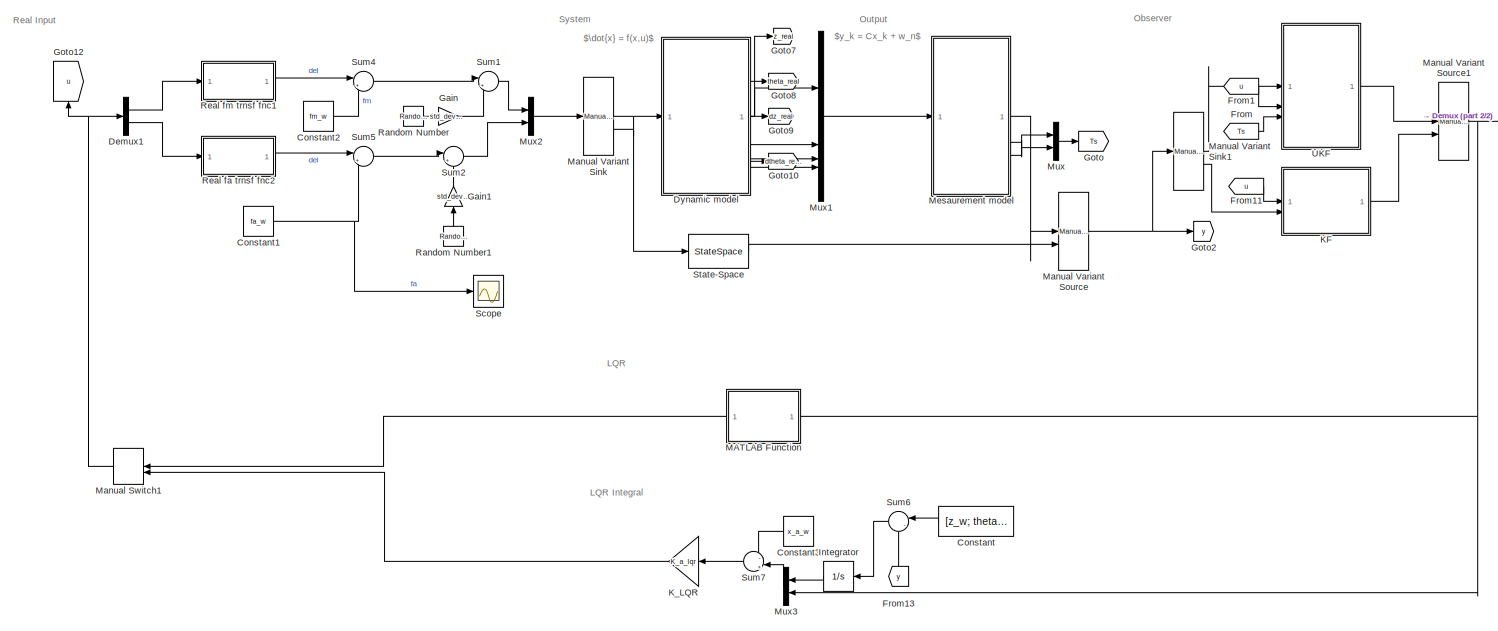
[diagram: root canvas - part 1/2, most of the canvas]
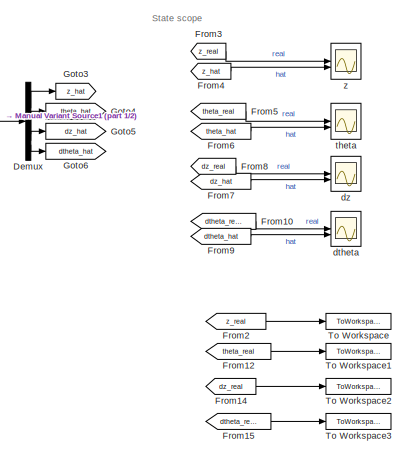
[diagram: root canvas - part 2/2, middle right region]
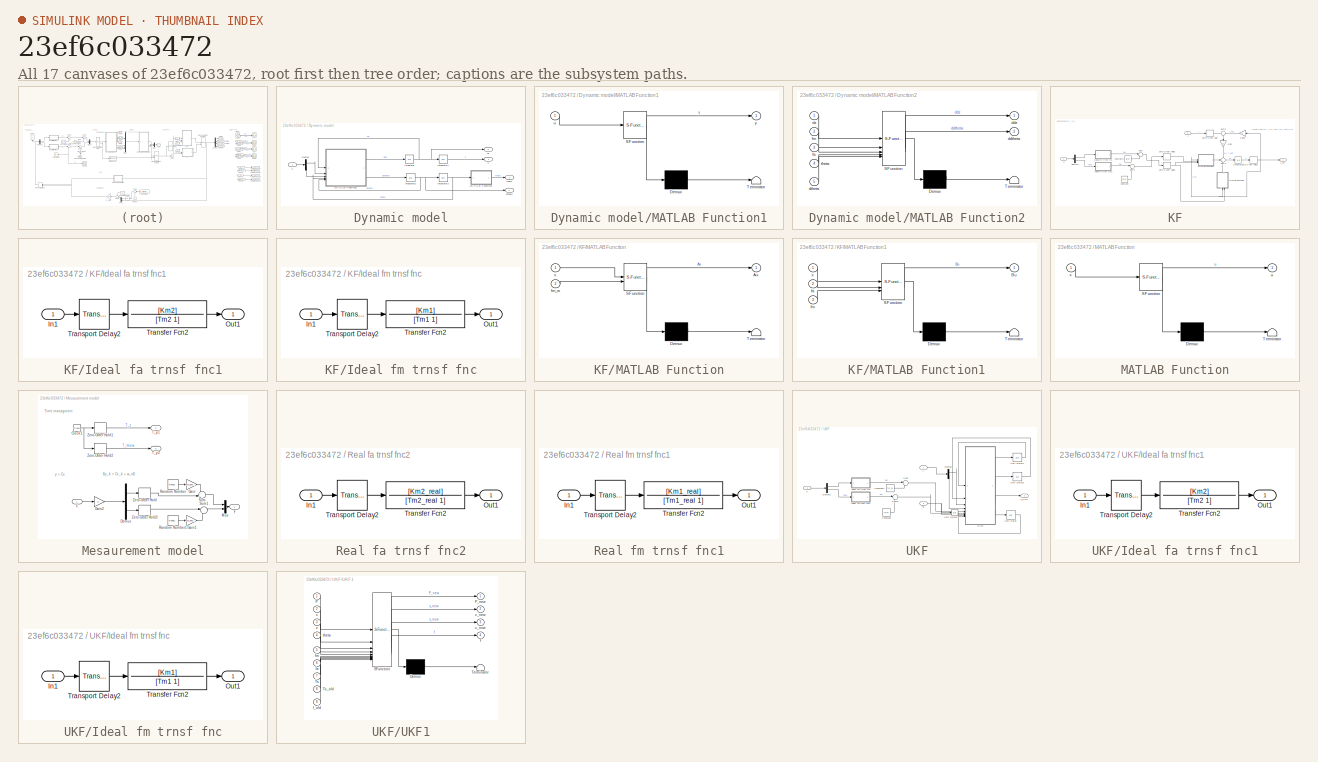
[diagram: thumbnail index - all 17 canvases of the model, root first then tree order]
MODEL slx_23ef6c033472
KIND model
CONFIG AbsTol = auto
CONFIG EnableMultiTasking = off
CONFIG FixedStep = out_rate
CONFIG InitFcn = LQR_init
CONFIG MaxStep = auto
CONFIG MinStep = auto
CONFIG RelTol = 1e-3
CONFIG SampleTimeConstraint = Unconstrained
CONFIG SolverName = FixedStepAuto
CONFIG StartTime = 0.0
CONFIG StopTime = 100
BLOCK [Constant] Constant
  NameLocation = top
  Value = [z_w; theta_w]
BLOCK [Constant] Constant1
  Value = fa_w
BLOCK [Constant] Constant2
  Value = fm_w
BLOCK [Constant] Constant3
  NameLocation = top
  Value = x_a_w
BLOCK [Demux] Demux
BLOCK [Demux] Demux1
  Outputs = 2
BLOCK [SubSystem] Dynamic model
BLOCK [Demux] Dynamic model/Demux
  Outputs = 2
BLOCK [Integrator] Dynamic model/Integrator
  InitialCondition = dz_0_real
BLOCK [Integrator] Dynamic model/Integrator1
  InitialCondition = z_0_real
BLOCK [Integrator] Dynamic model/Integrator2
  InitialCondition = dtheta_0_real
BLOCK [Integrator] Dynamic model/Integrator3
  InitialCondition = theta_0_real
BLOCK [SubSystem] Dynamic model/MATLAB Function1
  ErrorFcn = Stateflow.Translate.translate
  PermitHierarchicalResolution = ExplicitOnly
  SFBlockType = MATLAB Function
  TreatAsAtomicUnit = on
BLOCK [Demux] Dynamic model/MATLAB Function1/ Demux 
  Outputs = 1
BLOCK [S-Function] Dynamic model/MATLAB Function1/ SFunction 
  EnableBusSupport = on
  FunctionName = sf_sfun
  PortCounts = [1 2]
  SFcnIsStateOwnerBlock = off
  SFunctionDeploymentMode = off
  Tag = Stateflow S-Function 7
BLOCK [Terminator] Dynamic model/MATLAB Function1/ Terminator 
BLOCK [Inport] Dynamic model/MATLAB Function1/u
BLOCK [Outport] Dynamic model/MATLAB Function1/y
BLOCK [SubSystem] Dynamic model/MATLAB Function2
  ErrorFcn = Stateflow.Translate.translate
  PermitHierarchicalResolution = ExplicitOnly
  SFBlockType = MATLAB Function
  TreatAsAtomicUnit = on
BLOCK [Demux] Dynamic model/MATLAB Function2/ Demux 
  Outputs = 1
BLOCK [S-Function] Dynamic model/MATLAB Function2/ SFunction 
  EnableBusSupport = on
  FunctionName = sf_sfun
  Parameters = s_param
  PortCounts = [5 3]
  SFcnIsStateOwnerBlock = off
  SFunctionDeploymentMode = off
  Tag = Stateflow S-Function 2
BLOCK [Terminator] Dynamic model/MATLAB Function2/ Terminator 
BLOCK [Outport] Dynamic model/MATLAB Function2/ddtheta
  Port = 2
BLOCK [Outport] Dynamic model/MATLAB Function2/ddz
BLOCK [Inport] Dynamic model/MATLAB Function2/dtheta
  Port = 5
BLOCK [Inport] Dynamic model/MATLAB Function2/dz
BLOCK [Inport] Dynamic model/MATLAB Function2/fa
  Port = 3
BLOCK [Inport] Dynamic model/MATLAB Function2/fm
  Port = 2
BLOCK [Inport] Dynamic model/MATLAB Function2/theta
  Port = 4
BLOCK [Outport] Dynamic model/dtheta
  Port = 4
BLOCK [Outport] Dynamic model/dz
  Port = 3
BLOCK [Outport] Dynamic model/theta
  Port = 2
BLOCK [Inport] Dynamic model/u
BLOCK [Outport] Dynamic model/z
BLOCK [From] From
  GotoTag = Ts
BLOCK [From] From1
  GotoTag = u
BLOCK [From] From10
  GotoTag = dtheta_real
BLOCK [From] From11
  GotoTag = u
BLOCK [From] From12
  GotoTag = theta_real
BLOCK [From] From13
  GotoTag = y
  NameLocation = right
BLOCK [From] From14
  GotoTag = dz_real
BLOCK [From] From15
  GotoTag = dtheta_real
BLOCK [From] From2
  GotoTag = z_real
BLOCK [From] From3
  GotoTag = z_real
BLOCK [From] From4
  GotoTag = z_hat
BLOCK [From] From5
  GotoTag = theta_real
BLOCK [From] From6
  GotoTag = theta_hat
BLOCK [From] From7
  GotoTag = dz_hat
BLOCK [From] From8
  GotoTag = dz_real
BLOCK [From] From9
  GotoTag = dtheta_hat
BLOCK [Gain] Gain
  Gain = std_dev.fm
BLOCK [Gain] Gain1
  Gain = std_dev.fa
  NameLocation = right
BLOCK [Goto] Goto
  GotoTag = Ts
BLOCK [Goto] Goto10
  GotoTag = dtheta_real
BLOCK [Goto] Goto12
  GotoTag = u
  NameLocation = right
BLOCK [Goto] Goto2
  GotoTag = y
BLOCK [Goto] Goto3
  GotoTag = z_hat
BLOCK [Goto] Goto4
  GotoTag = theta_hat
BLOCK [Goto] Goto5
  GotoTag = dz_hat
BLOCK [Goto] Goto6
  GotoTag = dtheta_hat
BLOCK [Goto] Goto7
  GotoTag = z_real
BLOCK [Goto] Goto8
  GotoTag = theta_real
BLOCK [Goto] Goto9
  GotoTag = dz_real
BLOCK [Integrator] Integrator
  NameLocation = top
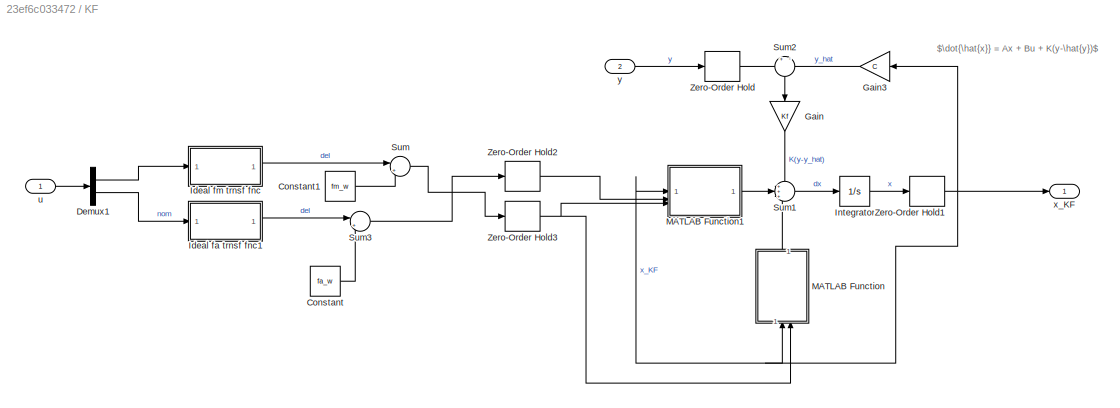
BLOCK [SubSystem] KF
BLOCK [Constant] KF/Constant
  Value = fa_w
BLOCK [Constant] KF/Constant1
  Value = fm_w
BLOCK [Demux] KF/Demux1
  Outputs = 2
BLOCK [Gain] KF/Gain
  Gain = Kf
  Multiplication = Matrix(K*u)
  NameLocation = left
BLOCK [Gain] KF/Gain3
  Gain = C
  Multiplication = Matrix(K*u)
  NameLocation = top
BLOCK [SubSystem] KF/Ideal fa trnsf fnc1
BLOCK [Inport] KF/Ideal fa trnsf fnc1/In1
BLOCK [Outport] KF/Ideal fa trnsf fnc1/Out1
BLOCK [TransferFcn] KF/Ideal fa trnsf fnc1/Transfer Fcn2
  Denominator = [Tm2 1]
  Numerator = [Km2]
BLOCK [TransportDelay] KF/Ideal fa trnsf fnc1/Transport Delay2
  DelayTime = T2
BLOCK [SubSystem] KF/Ideal fm trnsf fnc
BLOCK [Inport] KF/Ideal fm trnsf fnc/In1
BLOCK [Outport] KF/Ideal fm trnsf fnc/Out1
BLOCK [TransferFcn] KF/Ideal fm trnsf fnc/Transfer Fcn2
  Denominator = [Tm1 1]
  Numerator = [Km1]
BLOCK [TransportDelay] KF/Ideal fm trnsf fnc/Transport Delay2
  DelayTime = T1
BLOCK [Integrator] KF/Integrator
  InitialCondition = x_0
BLOCK [SubSystem] KF/MATLAB Function
  ErrorFcn = Stateflow.Translate.translate
  LibrarySourceBlock = simulink/User-Defined\nFunctions/MATLAB Function
  NameLocation = right
  PermitHierarchicalResolution = ExplicitOnly
  SFBlockType = MATLAB Function
  TreatAsAtomicUnit = on
BLOCK [Demux] KF/MATLAB Function/ Demux 
  Outputs = 1
BLOCK [S-Function] KF/MATLAB Function/ SFunction 
  EnableBusSupport = on
  FunctionName = sf_sfun
  Parameters = s_param
  PortCounts = [2 2]
  SFcnIsStateOwnerBlock = off
  SFunctionDeploymentMode = off
  Tag = Stateflow S-Function 1
BLOCK [Terminator] KF/MATLAB Function/ Terminator 
BLOCK [Outport] KF/MATLAB Function/Ax
BLOCK [Inport] KF/MATLAB Function/fm_w
  Port = 2
BLOCK [Inport] KF/MATLAB Function/x
BLOCK [SubSystem] KF/MATLAB Function1
  ErrorFcn = Stateflow.Translate.translate
  LibrarySourceBlock = simulink/User-Defined\nFunctions/MATLAB Function
  PermitHierarchicalResolution = ExplicitOnly
  SFBlockType = MATLAB Function
  TreatAsAtomicUnit = on
BLOCK [Demux] KF/MATLAB Function1/ Demux 
  Outputs = 1
BLOCK [S-Function] KF/MATLAB Function1/ SFunction 
  EnableBusSupport = on
  FunctionName = sf_sfun
  Parameters = s_param
  PortCounts = [3 2]
  SFcnIsStateOwnerBlock = off
  SFunctionDeploymentMode = off
  Tag = Stateflow S-Function 4
BLOCK [Terminator] KF/MATLAB Function1/ Terminator 
BLOCK [Outport] KF/MATLAB Function1/Bu
BLOCK [Inport] KF/MATLAB Function1/fa
  Port = 2
BLOCK [Inport] KF/MATLAB Function1/fm
  Port = 3
BLOCK [Inport] KF/MATLAB Function1/x
BLOCK [Sum] KF/Sum
  Inputs = |++
BLOCK [Sum] KF/Sum1
  Inputs = +++
BLOCK [Sum] KF/Sum2
  Inputs = +|-
  NameLocation = left
BLOCK [Sum] KF/Sum3
  Inputs = |++
BLOCK [ZeroOrderHold] KF/Zero-Order Hold
  SampleTime = dt
BLOCK [ZeroOrderHold] KF/Zero-Order Hold1
  SampleTime = dt
BLOCK [ZeroOrderHold] KF/Zero-Order Hold2
  SampleTime = dt
BLOCK [ZeroOrderHold] KF/Zero-Order Hold3
  SampleTime = dt
BLOCK [Inport] KF/u
BLOCK [Outport] KF/x_KF
BLOCK [Inport] KF/y
  Port = 2
BLOCK [Gain] K_LQR
  Gain = K_a_lqr
  Multiplication = Matrix(K*u)
  NameLocation = top
BLOCK [SubSystem] MATLAB Function
  ErrorFcn = Stateflow.Translate.translate
  NameLocation = top
  PermitHierarchicalResolution = ExplicitOnly
  SFBlockType = MATLAB Function
  TreatAsAtomicUnit = on
BLOCK [Demux] MATLAB Function/ Demux 
  Outputs = 1
BLOCK [S-Function] MATLAB Function/ SFunction 
  EnableBusSupport = on
  FunctionName = sf_sfun
  Parameters = K_lqr,x_w
  PortCounts = [1 2]
  SFcnIsStateOwnerBlock = off
  SFunctionDeploymentMode = off
  Tag = Stateflow S-Function 3
BLOCK [Terminator] MATLAB Function/ Terminator 
BLOCK [Outport] MATLAB Function/u
BLOCK [Inport] MATLAB Function/x
BLOCK [ManualSwitch] Manual Switch1
  NameLocation = top
BLOCK [Reference] Manual Variant Sink  REF=simulink/Signal
Routing/Manual
Variant Sink
  SourceBlock = simulink/Signal\nRouting/Manual\nVariant Sink
  SourceType = ManualVariantSink
BLOCK [Reference] Manual Variant Sink1  REF=simulink/Signal
Routing/Manual
Variant Sink
  SourceBlock = simulink/Signal\nRouting/Manual\nVariant Sink
  SourceType = ManualVariantSink
BLOCK [Reference] Manual Variant Source  REF=simulink/Signal
Routing/Manual
Variant Source
  SourceBlock = simulink/Signal\nRouting/Manual\nVariant Source
  SourceType = ManualVariantSource
BLOCK [Reference] Manual Variant Source1  REF=simulink/Signal
Routing/Manual
Variant Source
  SourceBlock = simulink/Signal\nRouting/Manual\nVariant Source
  SourceType = ManualVariantSource
BLOCK [SubSystem] Mesaurement model
BLOCK [Clock] Mesaurement model/Clock1
BLOCK [Demux] Mesaurement model/Demux
  Outputs = 2
BLOCK [Gain] Mesaurement model/Gain
  Gain = std_dev.y1
BLOCK [Gain] Mesaurement model/Gain1
  Gain = std_dev.y2
BLOCK [Gain] Mesaurement model/Gain2
  Gain = C
  Multiplication = Matrix(K*u)
BLOCK [Mux] Mesaurement model/Mux
  DisplayOption = bar
  Inputs = 2
BLOCK [RandomNumber] Mesaurement model/Random Number
  SampleTime = Ts.y1
BLOCK [RandomNumber] Mesaurement model/Random Number1
  SampleTime = Ts.y2
BLOCK [Sum] Mesaurement model/Sum
  Inputs = ++|
BLOCK [Sum] Mesaurement model/Sum1
  Inputs = |++
BLOCK [Outport] Mesaurement model/T_y1
  Port = 2
BLOCK [Outport] Mesaurement model/T_y2
  Port = 3
BLOCK [ZeroOrderHold] Mesaurement model/Zero-Order Hold
  SampleTime = Ts.y1
BLOCK [ZeroOrderHold] Mesaurement model/Zero-Order Hold1
  SampleTime = Ts.y1
BLOCK [ZeroOrderHold] Mesaurement model/Zero-Order Hold2
  SampleTime = Ts.y2
BLOCK [ZeroOrderHold] Mesaurement model/Zero-Order Hold3
  SampleTime = Ts.y2
BLOCK [Inport] Mesaurement model/x
BLOCK [Outport] Mesaurement model/y
BLOCK [Mux] Mux
  DisplayOption = bar
  Inputs = 2
BLOCK [Mux] Mux1
  DisplayOption = bar
BLOCK [Mux] Mux2
  DisplayOption = bar
  Inputs = 2
BLOCK [Mux] Mux3
  DisplayOption = bar
  Inputs = 2
  NameLocation = top
BLOCK [RandomNumber] Random Number
  SampleTime = out_rate
BLOCK [RandomNumber] Random Number1
  NameLocation = right
  SampleTime = out_rate
BLOCK [SubSystem] Real fa trnsf fnc2
BLOCK [Inport] Real fa trnsf fnc2/In1
BLOCK [Outport] Real fa trnsf fnc2/Out1
BLOCK [TransferFcn] Real fa trnsf fnc2/Transfer Fcn2
  Denominator = [Tm2_real 1]
  Numerator = [Km2_real]
BLOCK [TransportDelay] Real fa trnsf fnc2/Transport Delay2
  DelayTime = T2_real
BLOCK [SubSystem] Real fm trnsf fnc1
BLOCK [Inport] Real fm trnsf fnc1/In1
BLOCK [Outport] Real fm trnsf fnc1/Out1
BLOCK [TransferFcn] Real fm trnsf fnc1/Transfer Fcn2
  Denominator = [Tm1_real 1]
  Numerator = [Km1_real]
BLOCK [TransportDelay] Real fm trnsf fnc1/Transport Delay2
  DelayTime = T1_real
BLOCK [Scope] Scope
  Floating = off
  NumInputPorts = 1
  ScopeSpecificationString = Simulink.scopes.TimeScopeBlockCfg('CurrentConfiguration', extmgr.ConfigurationSet(extmgr.Configuration('Core','General UI',true),extmgr.Configuration('Core','Source UI',true),extmgr.Configuration('Sources','WiredSimulink',true,'DataLoggingVariableName','ScopeData1'),extmgr.Configuration('Visuals','Time Domain',true,'SerializedDisplays',{struct('MinYLimReal','-1.00000','MaxYLimReal','1.00000','YLab...<+1432ch>
BLOCK [StateSpace] State-Space
  A = A
  B = B
  C = C
  D = zeros(2,2)
  InitialCondition = x_0_real
BLOCK [Sum] Sum1
  Inputs = |++
BLOCK [Sum] Sum2
  Inputs = |++
BLOCK [Sum] Sum4
  Inputs = |++
BLOCK [Sum] Sum5
  Inputs = |++
BLOCK [Sum] Sum6
  Inputs = |-+
  NameLocation = top
BLOCK [Sum] Sum7
  Inputs = -|+
  NameLocation = top
BLOCK [ToWorkspace] To Workspace
  FixptAsFi = on
  MaxDataPoints = inf
  SampleTime = -1
  SaveFormat = Timeseries
  VariableName = z
BLOCK [ToWorkspace] To Workspace1
  FixptAsFi = on
  MaxDataPoints = inf
  SampleTime = -1
  SaveFormat = Timeseries
  VariableName = theta
BLOCK [ToWorkspace] To Workspace2
  FixptAsFi = on
  MaxDataPoints = inf
  SampleTime = -1
  SaveFormat = Timeseries
  VariableName = dz
BLOCK [ToWorkspace] To Workspace3
  FixptAsFi = on
  MaxDataPoints = inf
  SampleTime = -1
  SaveFormat = Timeseries
  VariableName = dtheta
BLOCK [SubSystem] UKF
BLOCK [Constant] UKF/Constant
  Value = fa_w
BLOCK [Constant] UKF/Constant1
  Value = fm_w
BLOCK [Demux] UKF/Demux
  Outputs = 2
BLOCK [Demux] UKF/Demux1
  Outputs = 2
BLOCK [SubSystem] UKF/Ideal fa trnsf fnc1
BLOCK [Inport] UKF/Ideal fa trnsf fnc1/In1
BLOCK [Outport] UKF/Ideal fa trnsf fnc1/Out1
BLOCK [TransferFcn] UKF/Ideal fa trnsf fnc1/Transfer Fcn2
  Denominator = [Tm2 1]
  Numerator = [Km2]
BLOCK [TransportDelay] UKF/Ideal fa trnsf fnc1/Transport Delay2
  DelayTime = T2
BLOCK [SubSystem] UKF/Ideal fm trnsf fnc
BLOCK [Inport] UKF/Ideal fm trnsf fnc/In1
BLOCK [Outport] UKF/Ideal fm trnsf fnc/Out1
BLOCK [TransferFcn] UKF/Ideal fm trnsf fnc/Transfer Fcn2
  Denominator = [Tm1 1]
  Numerator = [Km1]
BLOCK [TransportDelay] UKF/Ideal fm trnsf fnc/Transport Delay2
  DelayTime = T1
BLOCK [Sum] UKF/Sum
  Inputs = |++
BLOCK [Sum] UKF/Sum3
  Inputs = |++
BLOCK [Inport] UKF/Ts
  Port = 3
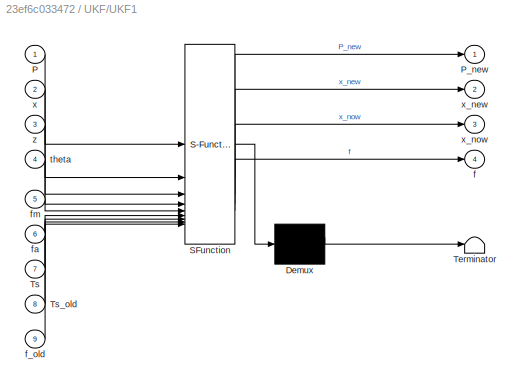
BLOCK [SubSystem] UKF/UKF1
  ErrorFcn = Stateflow.Translate.translate
  PermitHierarchicalResolution = ExplicitOnly
  SFBlockType = MATLAB Function
  SystemSampleTime = dt
  TreatAsAtomicUnit = on
BLOCK [Demux] UKF/UKF1/ Demux 
  Outputs = 1
BLOCK [S-Function] UKF/UKF1/ SFunction 
  EnableBusSupport = on
  FunctionName = sf_sfun
  Parameters = C,Q,R,U_mean,dt,m_treshold,s_param
  PortCounts = [9 5]
  SFcnIsStateOwnerBlock = off
  SFunctionDeploymentMode = off
  Tag = Stateflow S-Function 5
BLOCK [Terminator] UKF/UKF1/ Terminator 
BLOCK [Inport] UKF/UKF1/P
BLOCK [Outport] UKF/UKF1/P_new
BLOCK [Inport] UKF/UKF1/Ts
  Port = 7
BLOCK [Inport] UKF/UKF1/Ts_old
  Port = 8
BLOCK [Outport] UKF/UKF1/f
  Port = 4
BLOCK [Inport] UKF/UKF1/f_old
  Port = 9
BLOCK [Inport] UKF/UKF1/fa
  Port = 6
BLOCK [Inport] UKF/UKF1/fm
  Port = 5
BLOCK [Inport] UKF/UKF1/theta
  Port = 4
BLOCK [Inport] UKF/UKF1/x
  Port = 2
BLOCK [Outport] UKF/UKF1/x_new
  Port = 2
BLOCK [Outport] UKF/UKF1/x_now
  Port = 3
BLOCK [Inport] UKF/UKF1/z
  Port = 3
BLOCK [UnitDelay] UKF/Unit Delay
  HasFrameUpgradeWarning = on
  InitialCondition = [1; 1]
  SampleTime = -1
BLOCK [UnitDelay] UKF/Unit Delay4
  HasFrameUpgradeWarning = on
  InitialCondition = P_0
  SampleTime = -1
BLOCK [UnitDelay] UKF/Unit Delay5
  HasFrameUpgradeWarning = on
  InitialCondition = x_0
  SampleTime = -1
BLOCK [UnitDelay] UKF/Unit Delay6
  HasFrameUpgradeWarning = on
  SampleTime = dt
BLOCK [Inport] UKF/u
  Port = 2
BLOCK [Outport] UKF/x_UKF
BLOCK [Inport] UKF/y
BLOCK [Scope] dtheta
  Floating = off
  NumInputPorts = 2
  ScopeSpecificationString = Simulink.scopes.TimeScopeBlockCfg('CurrentConfiguration', extmgr.ConfigurationSet(extmgr.Configuration('Core','General UI',true),extmgr.Configuration('Core','Source UI',true),extmgr.Configuration('Sources','WiredSimulink',true,'DataLoggingVariableName','ScopeData4'),extmgr.Configuration('Visuals','Time Domain',true,'SerializedDisplays',{struct('MinYLimReal','-1.4976','MaxYLimReal','1.65283','YLabe...<+1438ch>
BLOCK [Scope] dz
  Floating = off
  NumInputPorts = 2
  ScopeSpecificationString = Simulink.scopes.TimeScopeBlockCfg('CurrentConfiguration', extmgr.ConfigurationSet(extmgr.Configuration('Core','General UI',true),extmgr.Configuration('Core','Source UI',true),extmgr.Configuration('Sources','WiredSimulink',true,'DataLoggingVariableName','ScopeData3'),extmgr.Configuration('Visuals','Time Domain',true,'SerializedDisplays',{struct('MinYLimReal','-49.38191','MaxYLimReal','103.85486','Y...<+1450ch>
BLOCK [Scope] theta
  Floating = off
  NumInputPorts = 2
  ScopeSpecificationString = Simulink.scopes.TimeScopeBlockCfg('CurrentConfiguration', extmgr.ConfigurationSet(extmgr.Configuration('Core','General UI',true),extmgr.Configuration('Core','Source UI',true),extmgr.Configuration('Sources','WiredSimulink',true,'DataLoggingVariableName','ScopeData2'),extmgr.Configuration('Visuals','Time Domain',true,'SerializedDisplays',{struct('MinYLimReal','-0.28926','MaxYLimReal','0.34864','YLab...<+1421ch>
BLOCK [Scope] z
  Floating = off
  NumInputPorts = 2
  ScopeSpecificationString = Simulink.scopes.TimeScopeBlockCfg('CurrentConfiguration', extmgr.ConfigurationSet(extmgr.Configuration('Core','General UI',true),extmgr.Configuration('Core','Source UI',true),extmgr.Configuration('Sources','WiredSimulink',true),extmgr.Configuration('Visuals','Time Domain',true,'SerializedDisplays',{struct('MinYLimReal','-64.02747','MaxYLimReal','576.24722','YLabelReal','','MinYLimMag','0.00000','M...<+1456ch>
ANNOTATION (root): $\dot{x} = f(x,u)$
ANNOTATION (root): $y_k = Cx_k + w_n$
ANNOTATION (root): LQR
ANNOTATION (root): LQR Integral
ANNOTATION (root): Observer
ANNOTATION (root): Output
ANNOTATION (root): Real Input
ANNOTATION (root): State scope
ANNOTATION (root): System
ANNOTATION KF: $\dot{\hat{x}} = Ax + Bu + K(y-\hat{y})$
ANNOTATION Mesaurement model: $y_k = Cx_k + w_n$
ANNOTATION Mesaurement model: Time managment
ANNOTATION Mesaurement model: y = Cx
NET Constant1:1 -> Scope:1, Sum5:2
LINE Constant2:1 -> Sum4:2
LINE Constant3:1 -> Sum7:1
LINE Constant:1 -> Sum6:1
LINE Demux1:1 -> Real fm trnsf fnc1:1
LINE Demux1:2 -> Real fa trnsf fnc2:1
LINE Demux:1 -> Goto3:1
LINE Demux:2 -> Goto4:1
LINE Demux:3 -> Goto5:1
LINE Demux:4 -> Goto6:1
LINE Dynamic model/Demux:1 -> Dynamic model/MATLAB Function2:2
LINE Dynamic model/Demux:2 -> Dynamic model/MATLAB Function2:3
LINE Dynamic model/Integrator1:1 -> Dynamic model/z:1
NET Dynamic model/Integrator2:1 -> Dynamic model/Integrator3:1, Dynamic model/MATLAB Function2:5, Dynamic model/dtheta:1
NET Dynamic model/Integrator3:1 -> Dynamic model/MATLAB Function1:1, Dynamic model/MATLAB Function2:4
NET Dynamic model/Integrator:1 -> Dynamic model/Integrator1:1, Dynamic model/MATLAB Function2:1, Dynamic model/dz:1
LINE Dynamic model/MATLAB Function1:1 -> Dynamic model/theta:1
LINE Dynamic model/MATLAB Function2:1 -> Dynamic model/Integrator:1
LINE Dynamic model/MATLAB Function2:2 -> Dynamic model/Integrator2:1
LINE Dynamic model/u:1 -> Dynamic model/Demux:1
NET Dynamic model:1 -> Goto7:1, Mux1:1
NET Dynamic model:2 -> Goto8:1, Mux1:2
NET Dynamic model:3 -> Goto9:1, Mux1:3
NET Dynamic model:4 -> Goto10:1, Mux1:4
LINE From10:1 -> dtheta:1
LINE From11:1 -> KF:1
LINE From12:1 -> To Workspace1:1
LINE From13:1 -> Sum6:2
LINE From14:1 -> To Workspace2:1
LINE From15:1 -> To Workspace3:1
LINE From1:1 -> UKF:2
LINE From2:1 -> To Workspace:1
LINE From3:1 -> z:1
LINE From4:1 -> z:2
LINE From5:1 -> theta:1
LINE From6:1 -> theta:2
LINE From7:1 -> dz:2
LINE From8:1 -> dz:1
LINE From9:1 -> dtheta:2
LINE From:1 -> UKF:3
LINE Gain1:1 -> Sum2:2
LINE Gain:1 -> Sum1:2
LINE Integrator:1 -> Mux3:1
LINE KF/Constant1:1 -> KF/Sum:2
LINE KF/Constant:1 -> KF/Sum3:2
LINE KF/Demux1:1 -> KF/Ideal fm trnsf fnc:1
LINE KF/Demux1:2 -> KF/Ideal fa trnsf fnc1:1
LINE KF/Gain3:1 -> KF/Sum2:2
LINE KF/Gain:1 -> KF/Sum1:1
LINE KF/Ideal fa trnsf fnc1/In1:1 -> KF/Ideal fa trnsf fnc1/Transport Delay2:1
LINE KF/Ideal fa trnsf fnc1/Transfer Fcn2:1 -> KF/Ideal fa trnsf fnc1/Out1:1
LINE KF/Ideal fa trnsf fnc1/Transport Delay2:1 -> KF/Ideal fa trnsf fnc1/Transfer Fcn2:1
LINE KF/Ideal fa trnsf fnc1:1 -> KF/Sum3:1
LINE KF/Ideal fm trnsf fnc/In1:1 -> KF/Ideal fm trnsf fnc/Transport Delay2:1
LINE KF/Ideal fm trnsf fnc/Transfer Fcn2:1 -> KF/Ideal fm trnsf fnc/Out1:1
LINE KF/Ideal fm trnsf fnc/Transport Delay2:1 -> KF/Ideal fm trnsf fnc/Transfer Fcn2:1
LINE KF/Ideal fm trnsf fnc:1 -> KF/Sum:1
LINE KF/Integrator:1 -> KF/Zero-Order Hold1:1
LINE KF/MATLAB Function1:1 -> KF/Sum1:2
LINE KF/MATLAB Function:1 -> KF/Sum1:3
LINE KF/Sum1:1 -> KF/Integrator:1
LINE KF/Sum2:1 -> KF/Gain:1
LINE KF/Sum3:1 -> KF/Zero-Order Hold2:1
LINE KF/Sum:1 -> KF/Zero-Order Hold3:1
NET KF/Zero-Order Hold1:1 -> KF/Gain3:1, KF/MATLAB Function1:1, KF/MATLAB Function:1, KF/x_KF:1
LINE KF/Zero-Order Hold2:1 -> KF/MATLAB Function1:2
NET KF/Zero-Order Hold3:1 -> KF/MATLAB Function1:3, KF/MATLAB Function:2
LINE KF/Zero-Order Hold:1 -> KF/Sum2:1
LINE KF/u:1 -> KF/Demux1:1
LINE KF/y:1 -> KF/Zero-Order Hold:1
LINE KF:1 -> Manual Variant Source1:2
LINE K_LQR:1 -> Manual Switch1:2
LINE MATLAB Function:1 -> Manual Switch1:1
NET Manual Switch1:1 -> Demux1:1, Goto12:1
LINE Manual Variant Sink1:1 -> UKF:1
LINE Manual Variant Sink1:2 -> KF:2
LINE Manual Variant Sink:1 -> Dynamic model:1
LINE Manual Variant Sink:2 -> State-Space:1
NET Manual Variant Source1:1 -> Demux:1, MATLAB Function:1, Mux3:2
NET Manual Variant Source:1 -> Goto2:1, Manual Variant Sink1:1
NET Mesaurement model/Clock1:1 -> Mesaurement model/Zero-Order Hold1:1, Mesaurement model/Zero-Order Hold2:1
LINE Mesaurement model/Demux:1 -> Mesaurement model/Zero-Order Hold:1
LINE Mesaurement model/Demux:2 -> Mesaurement model/Zero-Order Hold3:1
LINE Mesaurement model/Gain1:1 -> Mesaurement model/Sum1:2
LINE Mesaurement model/Gain2:1 -> Mesaurement model/Demux:1
LINE Mesaurement model/Gain:1 -> Mesaurement model/Sum:1
LINE Mesaurement model/Mux:1 -> Mesaurement model/y:1
LINE Mesaurement model/Random Number1:1 -> Mesaurement model/Gain1:1
LINE Mesaurement model/Random Number:1 -> Mesaurement model/Gain:1
LINE Mesaurement model/Sum1:1 -> Mesaurement model/Mux:2
LINE Mesaurement model/Sum:1 -> Mesaurement model/Mux:1
LINE Mesaurement model/Zero-Order Hold1:1 -> Mesaurement model/T_y1:1
LINE Mesaurement model/Zero-Order Hold2:1 -> Mesaurement model/T_y2:1
LINE Mesaurement model/Zero-Order Hold3:1 -> Mesaurement model/Sum1:1
LINE Mesaurement model/Zero-Order Hold:1 -> Mesaurement model/Sum:2
LINE Mesaurement model/x:1 -> Mesaurement model/Gain2:1
LINE Mesaurement model:1 -> Manual Variant Source:1
LINE Mesaurement model:2 -> Mux:1
LINE Mesaurement model:3 -> Mux:2
LINE Mux1:1 -> Mesaurement model:1
LINE Mux2:1 -> Manual Variant Sink:1
LINE Mux3:1 -> Sum7:2
LINE Mux:1 -> Goto:1
LINE Random Number1:1 -> Gain1:1
LINE Random Number:1 -> Gain:1
LINE Real fa trnsf fnc2/In1:1 -> Real fa trnsf fnc2/Transport Delay2:1
LINE Real fa trnsf fnc2/Transfer Fcn2:1 -> Real fa trnsf fnc2/Out1:1
LINE Real fa trnsf fnc2/Transport Delay2:1 -> Real fa trnsf fnc2/Transfer Fcn2:1
LINE Real fa trnsf fnc2:1 -> Sum5:1
LINE Real fm trnsf fnc1/In1:1 -> Real fm trnsf fnc1/Transport Delay2:1
LINE Real fm trnsf fnc1/Transfer Fcn2:1 -> Real fm trnsf fnc1/Out1:1
LINE Real fm trnsf fnc1/Transport Delay2:1 -> Real fm trnsf fnc1/Transfer Fcn2:1
LINE Real fm trnsf fnc1:1 -> Sum4:1
LINE State-Space:1 -> Manual Variant Source:2
LINE Sum1:1 -> Mux2:1
LINE Sum2:1 -> Mux2:2
LINE Sum4:1 -> Sum1:1
LINE Sum5:1 -> Sum2:1
LINE Sum6:1 -> Integrator:1
LINE Sum7:1 -> K_LQR:1
LINE UKF/Constant1:1 -> UKF/Sum:2
LINE UKF/Constant:1 -> UKF/Sum3:2
LINE UKF/Demux1:1 -> UKF/Ideal fm trnsf fnc:1
LINE UKF/Demux1:2 -> UKF/Ideal fa trnsf fnc1:1
LINE UKF/Demux:1 -> UKF/UKF1:3
LINE UKF/Demux:2 -> UKF/UKF1:4
LINE UKF/Ideal fa trnsf fnc1/In1:1 -> UKF/Ideal fa trnsf fnc1/Transport Delay2:1
LINE UKF/Ideal fa trnsf fnc1/Transfer Fcn2:1 -> UKF/Ideal fa trnsf fnc1/Out1:1
LINE UKF/Ideal fa trnsf fnc1/Transport Delay2:1 -> UKF/Ideal fa trnsf fnc1/Transfer Fcn2:1
LINE UKF/Ideal fa trnsf fnc1:1 -> UKF/Sum3:1
LINE UKF/Ideal fm trnsf fnc/In1:1 -> UKF/Ideal fm trnsf fnc/Transport Delay2:1
LINE UKF/Ideal fm trnsf fnc/Transfer Fcn2:1 -> UKF/Ideal fm trnsf fnc/Out1:1
LINE UKF/Ideal fm trnsf fnc/Transport Delay2:1 -> UKF/Ideal fm trnsf fnc/Transfer Fcn2:1
LINE UKF/Ideal fm trnsf fnc:1 -> UKF/Sum:1
LINE UKF/Sum3:1 -> UKF/UKF1:6
LINE UKF/Sum:1 -> UKF/UKF1:5
NET UKF/Ts:1 -> UKF/UKF1:7, UKF/Unit Delay6:1
LINE UKF/UKF1:1 -> UKF/Unit Delay4:1
LINE UKF/UKF1:2 -> UKF/Unit Delay5:1
LINE UKF/UKF1:3 -> UKF/x_UKF:1
LINE UKF/UKF1:4 -> UKF/Unit Delay:1
LINE UKF/Unit Delay4:1 -> UKF/UKF1:1
LINE UKF/Unit Delay5:1 -> UKF/UKF1:2
LINE UKF/Unit Delay6:1 -> UKF/UKF1:8
LINE UKF/Unit Delay:1 -> UKF/UKF1:9
LINE UKF/u:1 -> UKF/Demux1:1
LINE UKF/y:1 -> UKF/Demux:1
LINE UKF:1 -> Manual Variant Source1:1
note: NET lines group one-source signal fan-out (src -> all destinations, sorted); 1:1 wires keep LINE
CHART Dynamic model/MATLAB Function1 states=1 transitions=1
  STATE_LABEL 'eML_blk_kernel()'
  STATE_LABEL 'SCRIPT:\nfunction y = fcn(u)\n\ny = atan2(sin(u), cos(u));\nend'
CHART KF/MATLAB Function states=1 transitions=1
  STATE_LABEL 'eML_blk_kernel()'
  STATE_LABEL 'SCRIPT:\nfunction Ax = fcn(x, fm_w, s_param)\n\ntheta_w = x(2);\n\nA = [0 0 1 0;...\n    0 0 0 1;...\n    0 -fm_w*sin(theta_w)/s_param.m -s_param.b/s_param.m 0;...\n    0 0 0 -s_param.beta/s_param.J];\n\n\nAx = A*x;\n'
CHART Dynamic model/MATLAB Function2 states=1 transitions=1
  STATE_LABEL 'eML_blk_kernel()'
  STATE_LABEL 'SCRIPT:\nfunction [ddz, ddtheta] = fcn(dz, fm, fa, theta, dtheta, s_param)\n\n% Rename params\nJ = s_param.J;     \nm = s_param.m;     \nb = s_param.b;      \nbeta = s_param.beta;    \ng = s_param.g;     \nl = s_param.l;   \n\n%% Dynamic equations\n\nddz = -b/m * dz + fm/m * cos(theta) -g;\nddtheta = -beta/J * dtheta + 2 * l/J * fa;\n\nend\n'
CHART MATLAB Function states=1 transitions=1
  STATE_LABEL 'eML_blk_kernel()'
  STATE_LABEL 'SCRIPT:\nfunction u = fcn(x, K_lqr, x_w)\n\nu = K_lqr*(x - x_w);\nend\n'
CHART KF/MATLAB Function1 states=1 transitions=1
  STATE_LABEL 'eML_blk_kernel()'
  STATE_LABEL 'SCRIPT:\nfunction Bu = fcn(x, fa, fm, s_param)\n\ntheta_w = x(2);\n\nu = [fm;fa];\n\nB = [0 0;...\n    0 0;...\n    cos(theta_w)/s_param.m 0;\n    0 2*s_param.l/s_param.J]; \n\nBu = B*u;\n'
CHART UKF/UKF1 states=1 transitions=1
  STATE_LABEL 'eML_blk_kernel()'
  STATE_LABEL 'SCRIPT:\nfunction [P_new, x_new, x_now, f] = UKF(P, x, z, theta, fm, fa, s_param, R, dt, Q, U_mean,Ts, Ts_old, f_old, m_treshold, C)\n%% UKF algorithm\n\n%% Correction\n\nf = f_old;\n\n% Flag refreshing\nfor i = 1:2\n    if Ts(i) > Ts_old(i)\n        f(i) = 1;\n    end\nend\n\ny = [z; theta];\n\n% Compute innovation\ne = y - C*x;\ne(2) = atan2( sin( e(2) ), cos( e(2) ) );\n\n% Compute covariance innovation\nS = C*P*tra...<+618ch>'
CHART  states=0 transitions=0
CHART  states=0 transitions=0
CHART  states=0 transitions=0
CHART  states=0 transitions=0
CHART  states=0 transitions=0
CHART  states=0 transitions=0
